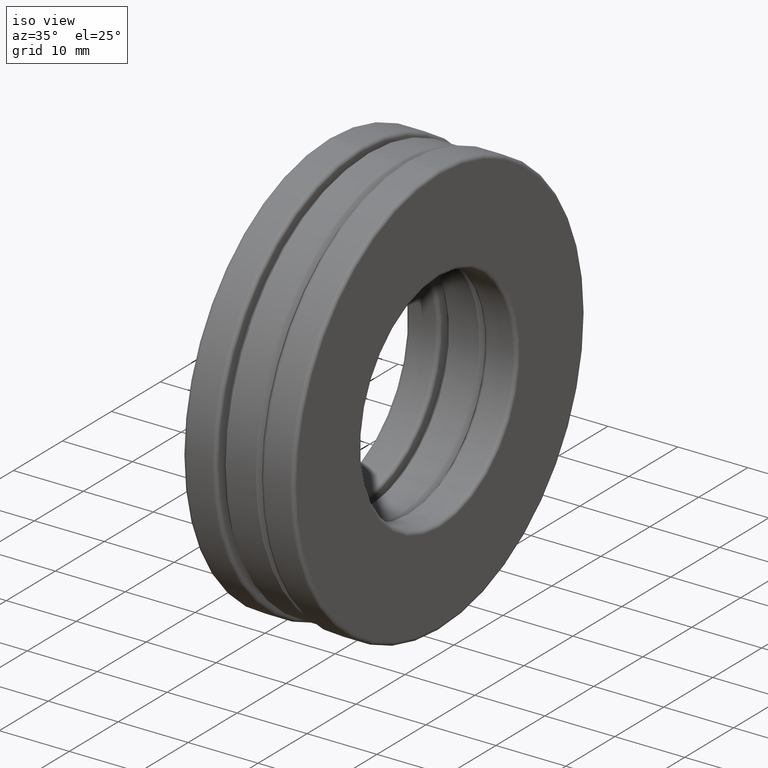
[diagram: clean part render]
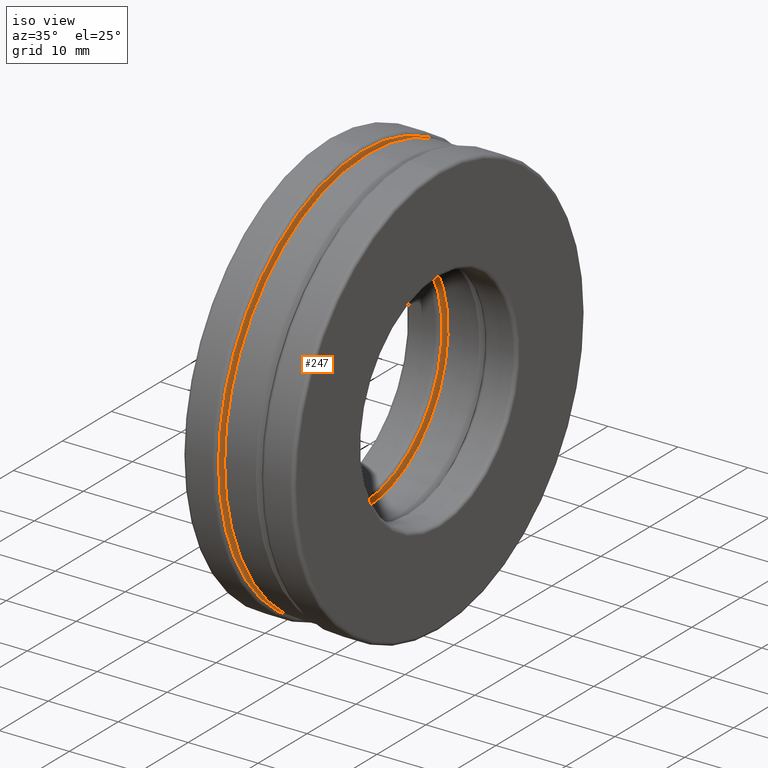
[diagram: same view with one face highlighted and labeled with its STEP entity id]
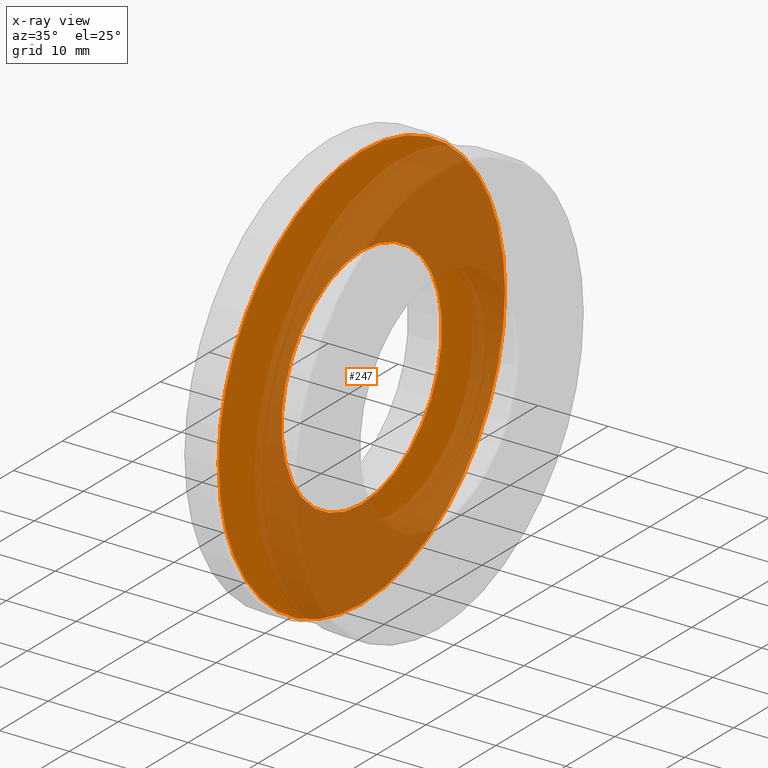
[diagram: x-ray of the same camera — body ghosted, the highlighted face saturated]
A machine part, iso view. The second image highlights one B-rep face of the part: STEP entity #247.
The next image is the same camera in x-ray: the body ghosted, the highlighted face saturated — about 63% of this face is hidden behind the body in this view.
In plain terms, the highlighted planar face has unit normal (1, 0, 0).
Its self-contained STEP definition (entity closure, byte-faithful):
#18 = CARTESIAN_POINT ( 'NONE',  ( -0.1250000000000000600, 0.0000000000000000000, 1.151875000000000200 ) ) ;
#120 = CIRCLE ( 'NONE', #529, 1.151875000000000200 ) ;
#177 = EDGE_LOOP ( 'NONE', ( #491 ) ) ;
#247 = ADVANCED_FACE ( 'NONE', ( #1148, #839 ), #383, .T. ) ;
#312 = VERTEX_POINT ( 'NONE', #18 ) ;
#383 = PLANE ( 'NONE',  #1472 ) ;
#406 = DIRECTION ( 'NONE',  ( 0.0000000000000000000, 0.0000000000000000000, 1.000000000000000000 ) ) ;
#458 = DIRECTION ( 'NONE',  ( 0.0000000000000000000, 0.0000000000000000000, 1.000000000000000000 ) ) ;
#491 = ORIENTED_EDGE ( 'NONE', *, *, #939, .T. ) ;
#504 = CIRCLE ( 'NONE', #994, 0.6450000000000001300 ) ;
#529 = AXIS2_PLACEMENT_3D ( 'NONE', #1103, #876, #406 ) ;
#626 = CARTESIAN_POINT ( 'NONE',  ( -0.1250000000000000600, -4.210616513046030100E-018, 0.0000000000000000000 ) ) ;
#733 = EDGE_LOOP ( 'NONE', ( #955 ) ) ;
#806 = CARTESIAN_POINT ( 'NONE',  ( -0.1250000000000000600, 0.0000000000000000000, 0.0000000000000000000 ) ) ;
#817 = CARTESIAN_POINT ( 'NONE',  ( -0.1250000000000000600, 0.0000000000000000000, 0.6450000000000001300 ) ) ;
#836 = VERTEX_POINT ( 'NONE', #817 ) ;
#839 = FACE_OUTER_BOUND ( 'NONE', #733, .T. ) ;
#876 = DIRECTION ( 'NONE',  ( -1.000000000000000000, -0.0000000000000000000, -0.0000000000000000000 ) ) ;
#938 = DIRECTION ( 'NONE',  ( -1.000000000000000000, -0.0000000000000000000, -0.0000000000000000000 ) ) ;
#939 = EDGE_CURVE ( 'NONE', #836, #836, #504, .T. ) ;
#955 = ORIENTED_EDGE ( 'NONE', *, *, #1171, .F. ) ;
#994 = AXIS2_PLACEMENT_3D ( 'NONE', #806, #938, #458 ) ;
#1103 = CARTESIAN_POINT ( 'NONE',  ( -0.1250000000000000600, 0.0000000000000000000, 0.0000000000000000000 ) ) ;
#1148 = FACE_BOUND ( 'NONE', #177, .T. ) ;
#1171 = EDGE_CURVE ( 'NONE', #312, #312, #120, .T. ) ;
#1195 = DIRECTION ( 'NONE',  ( 1.000000000000000000, 0.0000000000000000000, 0.0000000000000000000 ) ) ;
#1256 = DIRECTION ( 'NONE',  ( 0.0000000000000000000, 0.0000000000000000000, -1.000000000000000000 ) ) ;
#1472 = AXIS2_PLACEMENT_3D ( 'NONE', #626, #1195, #1256 ) ;